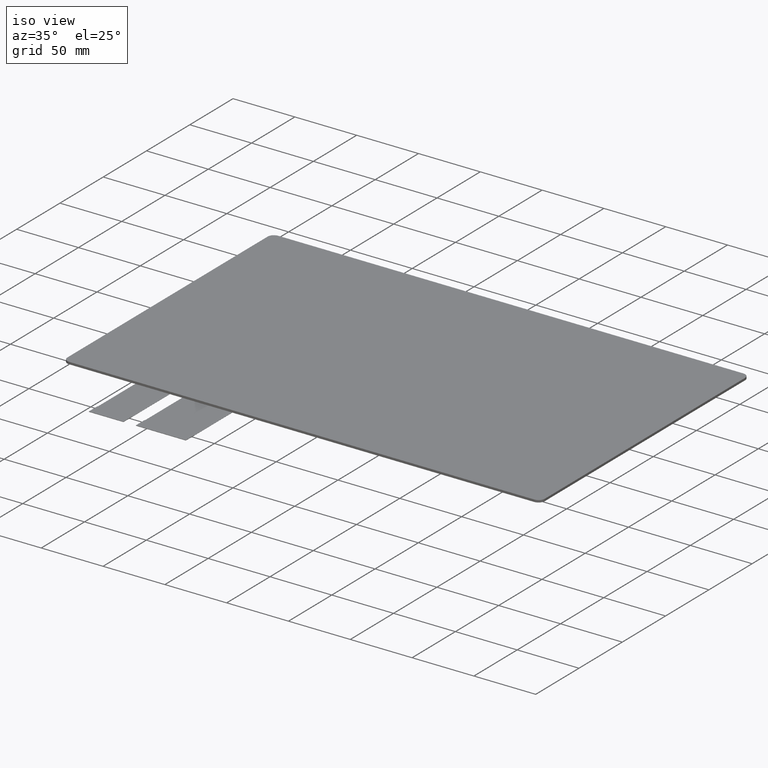
[diagram: clean part render]
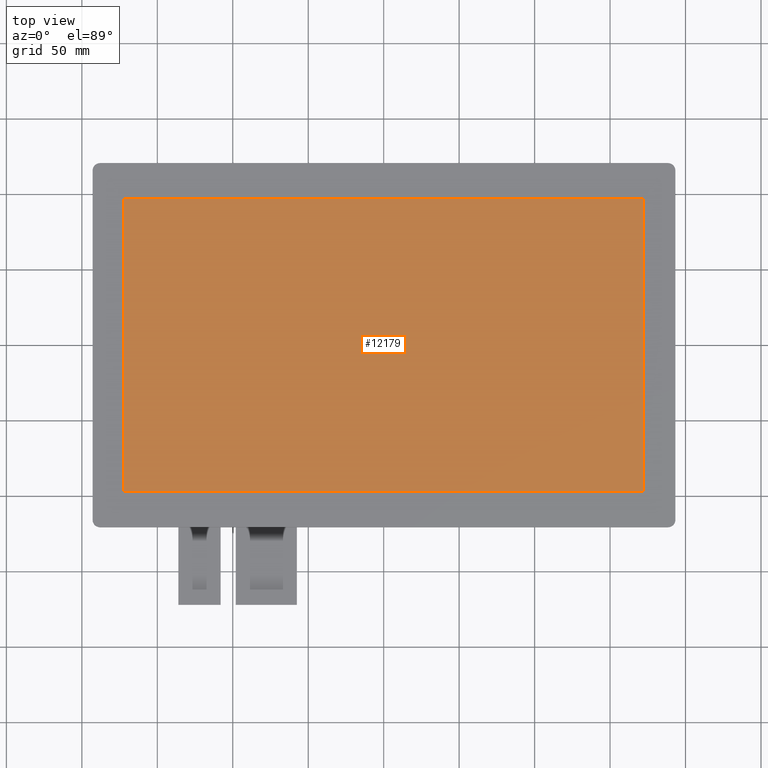
[diagram: tour spotlight — one face highlighted and labeled with its STEP entity id]
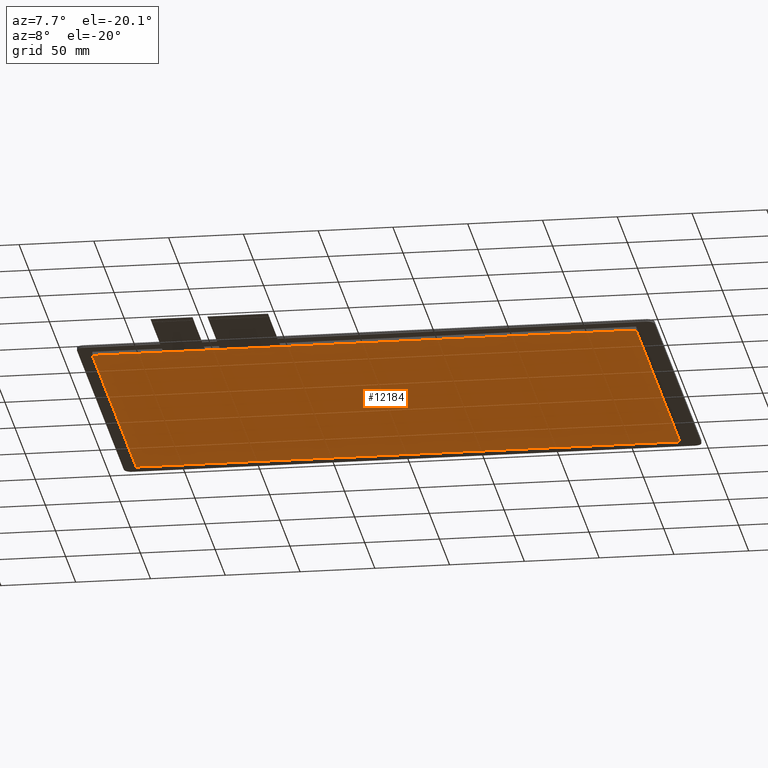
[diagram: tour spotlight — one face highlighted and labeled with its STEP entity id]
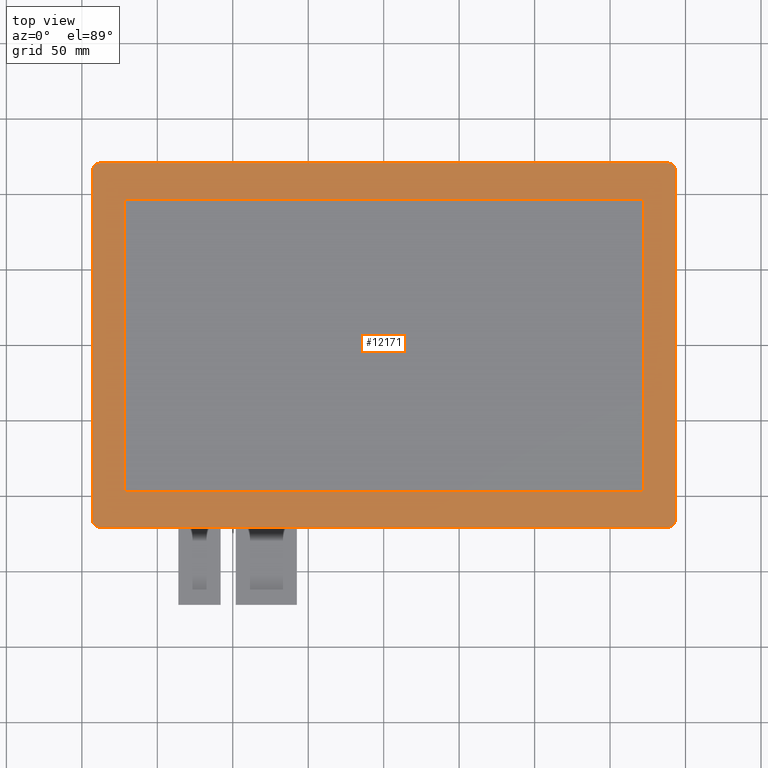
[diagram: tour spotlight — one face highlighted and labeled with its STEP entity id]
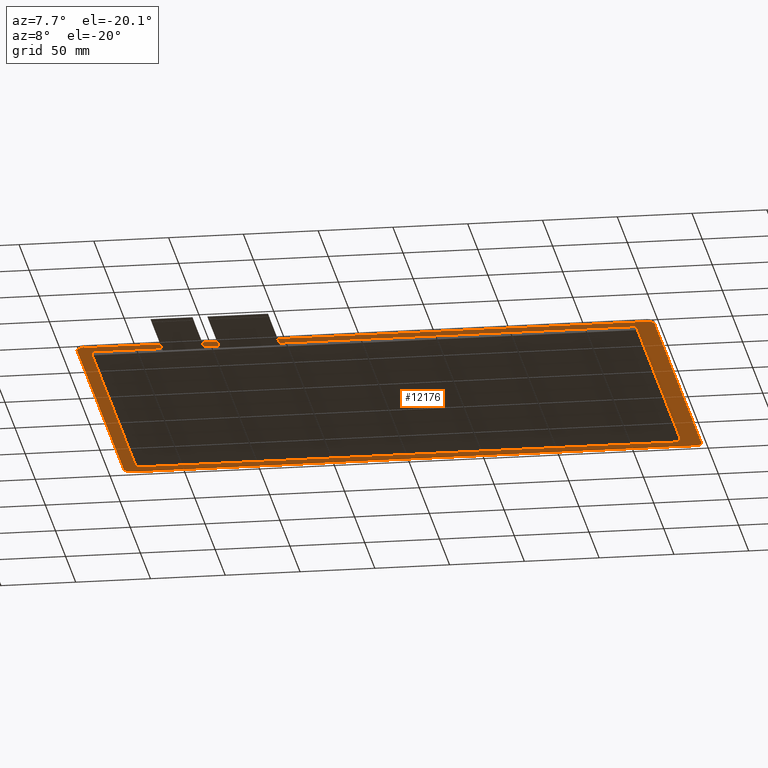
[diagram: tour spotlight — one face highlighted and labeled with its STEP entity id]
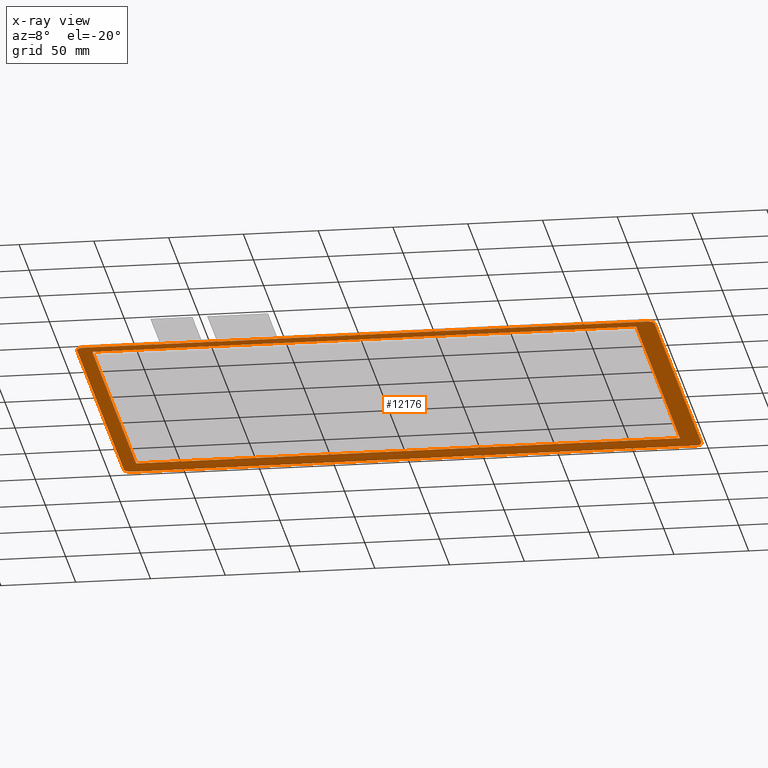
[diagram: x-ray of the same camera — body ghosted, this tour face saturated]
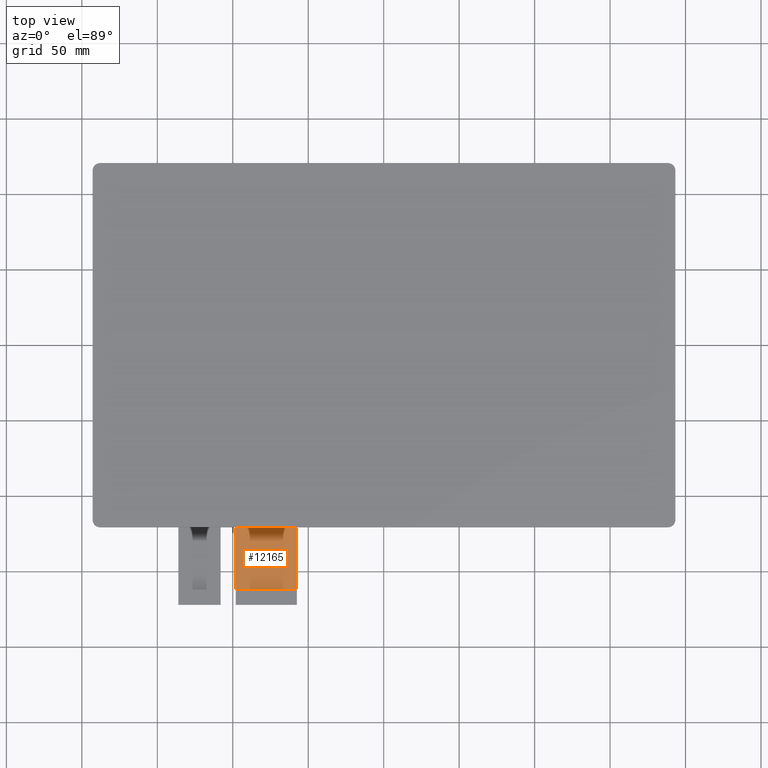
[diagram: tour spotlight — one face highlighted and labeled with its STEP entity id]
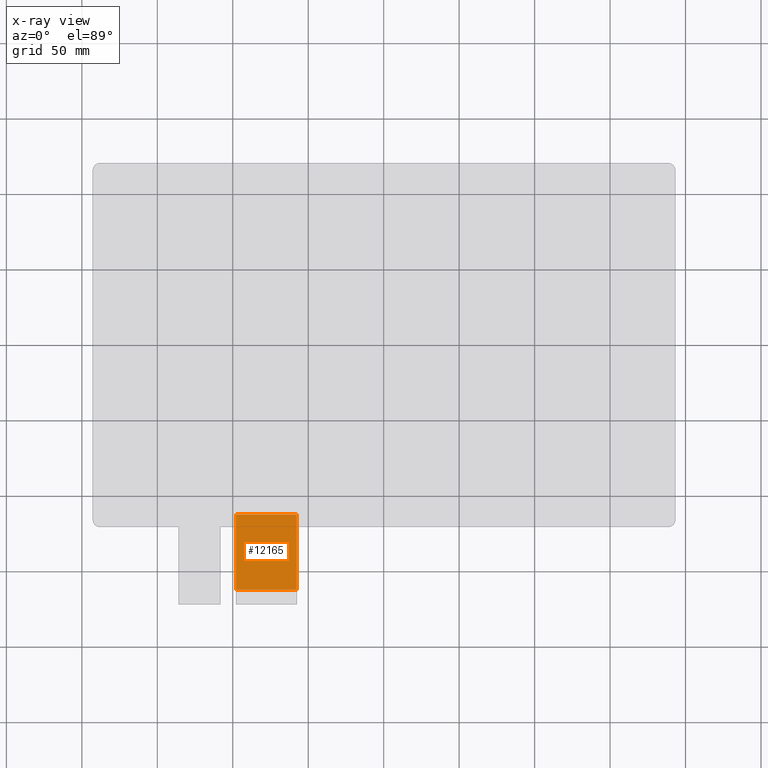
[diagram: x-ray of the same camera — body ghosted, this tour face saturated]
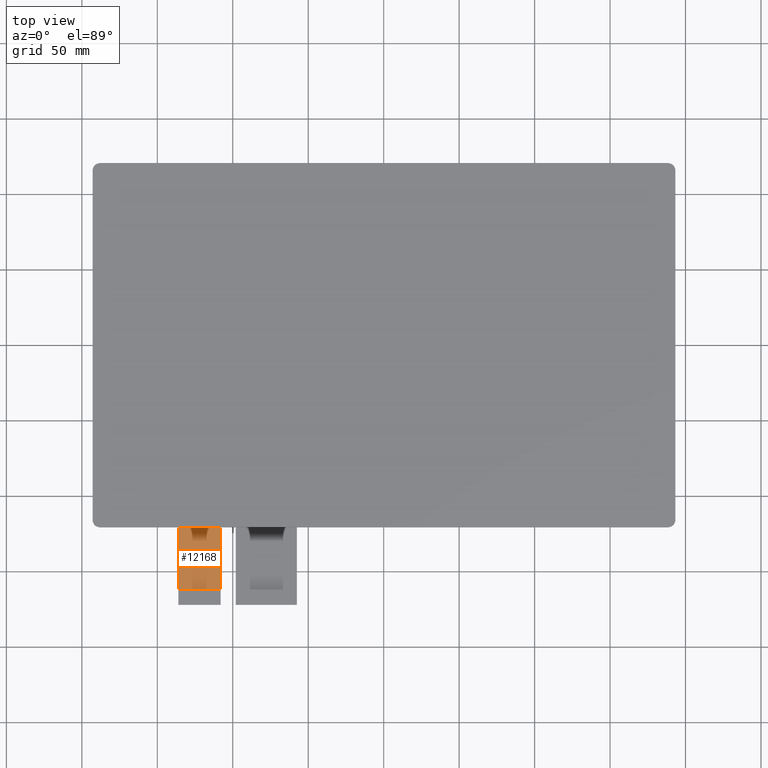
[diagram: tour spotlight — one face highlighted and labeled with its STEP entity id]
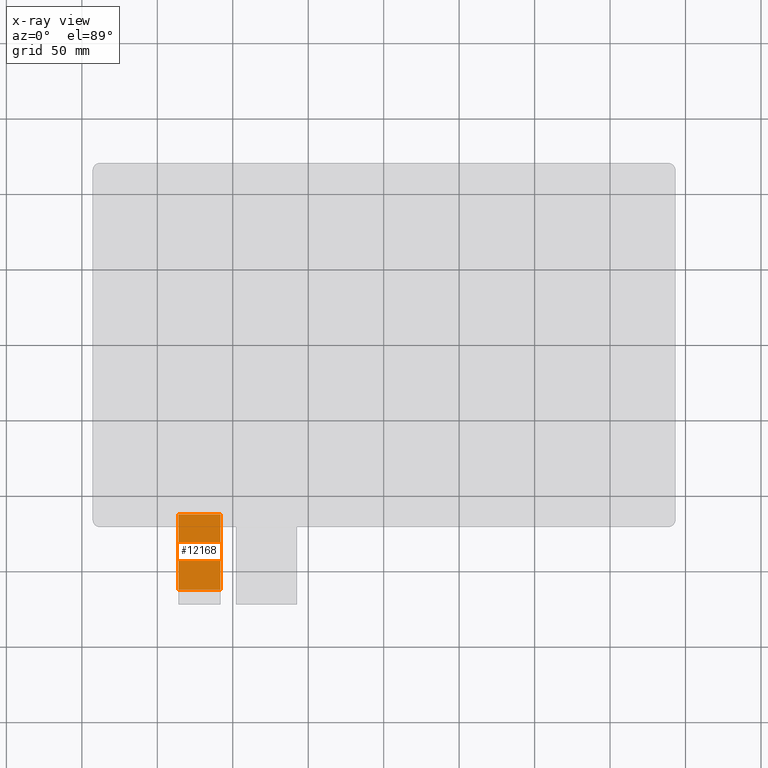
[diagram: x-ray of the same camera — body ghosted, this tour face saturated]
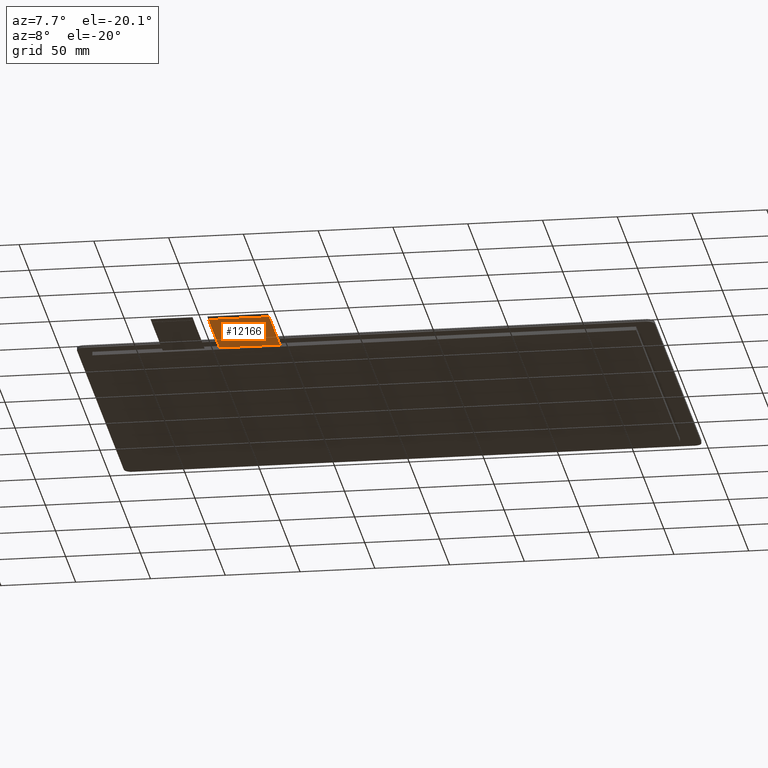
[diagram: tour spotlight — one face highlighted and labeled with its STEP entity id]
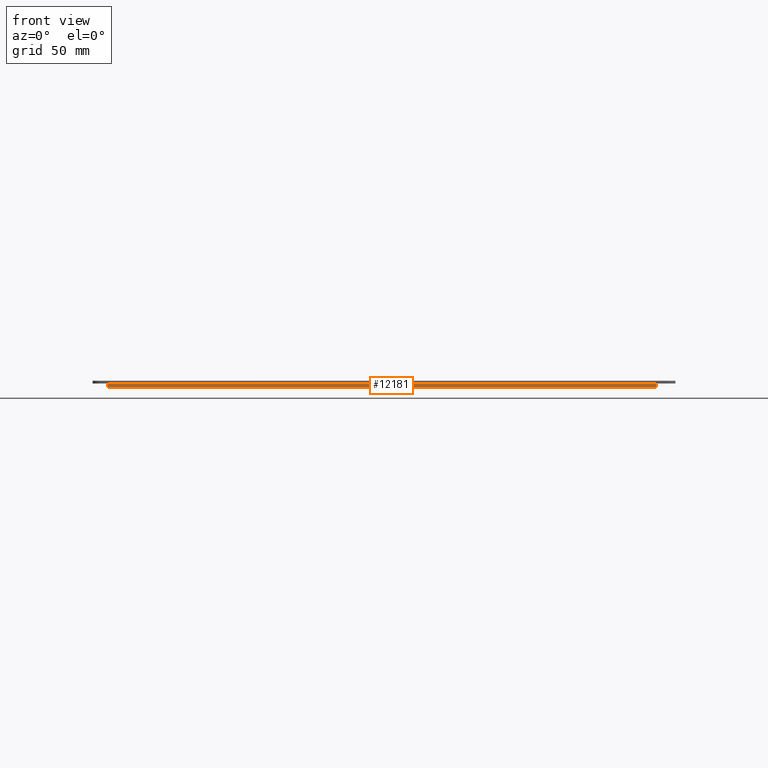
[diagram: tour spotlight — one face highlighted and labeled with its STEP entity id]
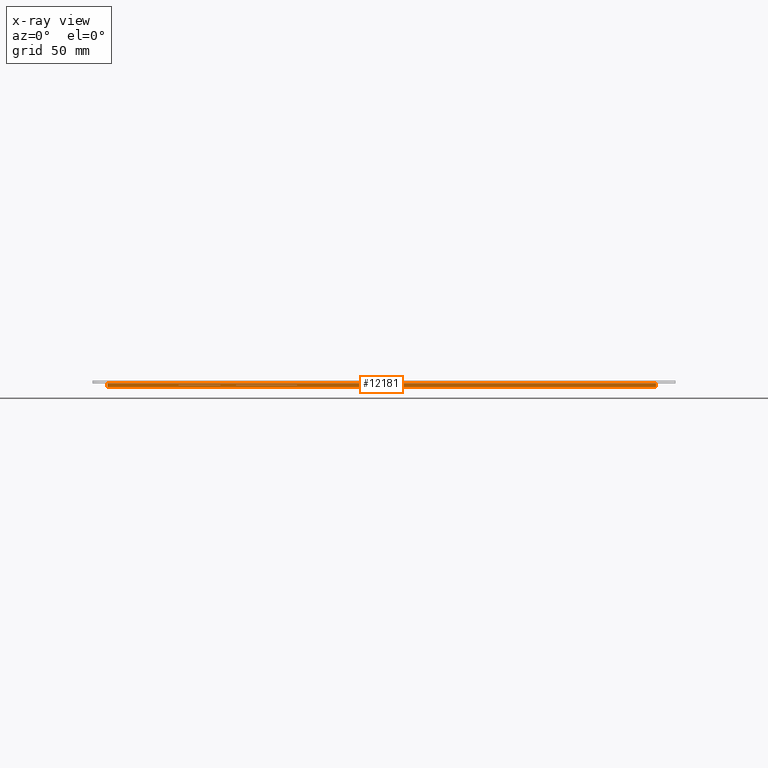
[diagram: x-ray of the same camera — body ghosted, this tour face saturated]
A machine part: a face-by-face anatomy tour. The part has 584 B-rep faces; the first image is the clean iso view, then the 8 largest visible faces are spotlighted one at a time (largest first), each with its STEP entity span.

Face 1 — top view, entity #12179. In plain terms, the highlighted planar face has unit normal (0, 0, 1).
Definition (entity closure, byte-faithful):
#615=PLANE('',#12801);
#1199=FACE_OUTER_BOUND('',#1785,.T.);
#1785=EDGE_LOOP('',(#11543,#11544,#11545,#11546));
#3479=LINE('',#19123,#5195);
#3480=LINE('',#19125,#5196);
#3481=LINE('',#19127,#5197);
#3482=LINE('',#19128,#5198);
#5195=VECTOR('',#15651,10.);
#5196=VECTOR('',#15652,10.);
#5197=VECTOR('',#15653,10.);
#5198=VECTOR('',#15654,10.);
#6378=VERTEX_POINT('',#19121);
#6379=VERTEX_POINT('',#19122);
#6380=VERTEX_POINT('',#19124);
#6381=VERTEX_POINT('',#19126);
#8096=EDGE_CURVE('',#6378,#6379,#3479,.T.);
#8097=EDGE_CURVE('',#6380,#6378,#3480,.T.);
#8098=EDGE_CURVE('',#6381,#6380,#3481,.T.);
#8099=EDGE_CURVE('',#6379,#6381,#3482,.T.);
#11543=ORIENTED_EDGE('',*,*,#8096,.T.);
#11544=ORIENTED_EDGE('',*,*,#8099,.T.);
#11545=ORIENTED_EDGE('',*,*,#8098,.T.);
#11546=ORIENTED_EDGE('',*,*,#8097,.T.);
#12179=ADVANCED_FACE('',(#1199),#615,.T.);
#12801=AXIS2_PLACEMENT_3D('',#19160,#15687,#15688);
#15651=DIRECTION('',(0.,1.,0.));
#15652=DIRECTION('',(1.,0.,0.));
#15653=DIRECTION('',(0.,-1.,0.));
#15654=DIRECTION('',(-1.,0.,0.));
#15687=DIRECTION('center_axis',(0.,0.,1.));
#15688=DIRECTION('ref_axis',(1.,0.,0.));
#19121=CARTESIAN_POINT('',(172.15,-96.8,1.8));
#19122=CARTESIAN_POINT('',(172.15,96.8,1.8));
#19123=CARTESIAN_POINT('',(172.15,-48.4,1.8));
#19124=CARTESIAN_POINT('',(-172.15,-96.8,1.8));
#19125=CARTESIAN_POINT('',(-85.975,-96.8,1.8));
#19126=CARTESIAN_POINT('',(-172.15,96.8,1.8));
#19127=CARTESIAN_POINT('',(-172.15,48.4,1.8));
#19128=CARTESIAN_POINT('',(86.175,96.8,1.8));
#19160=CARTESIAN_POINT('Origin',(0.199999999999996,3.5527136788005E-14,
1.8));

Face 2 — auxiliary view, entity #12184. In plain terms, the highlighted planar face has unit normal (0, 0, -1).
Definition (entity closure, byte-faithful):
#620=PLANE('',#12806);
#1204=FACE_OUTER_BOUND('',#1792,.T.);
#1792=EDGE_LOOP('',(#11571,#11572,#11573,#11574));
#3496=LINE('',#19165,#5212);
#3498=LINE('',#19169,#5214);
#3500=LINE('',#19173,#5216);
#3502=LINE('',#19176,#5218);
#5212=VECTOR('',#15692,10.);
#5214=VECTOR('',#15696,10.);
#5216=VECTOR('',#15700,10.);
#5218=VECTOR('',#15704,10.);
#6391=VERTEX_POINT('',#19162);
#6392=VERTEX_POINT('',#19164);
#6393=VERTEX_POINT('',#19168);
#6394=VERTEX_POINT('',#19172);
#8116=EDGE_CURVE('',#6392,#6391,#3496,.T.);
#8118=EDGE_CURVE('',#6393,#6392,#3498,.T.);
#8120=EDGE_CURVE('',#6394,#6393,#3500,.T.);
#8122=EDGE_CURVE('',#6391,#6394,#3502,.T.);
#11571=ORIENTED_EDGE('',*,*,#8122,.T.);
#11572=ORIENTED_EDGE('',*,*,#8120,.T.);
#11573=ORIENTED_EDGE('',*,*,#8118,.T.);
#11574=ORIENTED_EDGE('',*,*,#8116,.T.);
#12184=ADVANCED_FACE('',(#1204),#620,.T.);
#12806=AXIS2_PLACEMENT_3D('',#19177,#15705,#15706);
#15692=DIRECTION('',(-3.269869929867E-16,1.,0.));
#15696=DIRECTION('',(-1.,-1.46564095660087E-16,0.));
#15700=DIRECTION('',(0.,-1.,0.));
#15704=DIRECTION('',(1.,0.,0.));
#15705=DIRECTION('center_axis',(0.,0.,-1.));
#15706=DIRECTION('ref_axis',(-1.,0.,0.));
#19162=CARTESIAN_POINT('',(-183.15,105.2,-2.5));
#19164=CARTESIAN_POINT('',(-183.15,-112.1,-2.5));
#19165=CARTESIAN_POINT('',(-183.15,105.2,-2.5));
#19168=CARTESIAN_POINT('',(180.45,-112.1,-2.5));
#19169=CARTESIAN_POINT('',(-183.15,-112.1,-2.5));
#19172=CARTESIAN_POINT('',(180.45,105.2,-2.5));
#19173=CARTESIAN_POINT('',(180.45,-112.1,-2.5));
#19176=CARTESIAN_POINT('',(180.45,105.2,-2.5));
#19177=CARTESIAN_POINT('Origin',(-1.34999999999998,-3.44999999999995,-2.5));

Face 3 — top view, entity #12171. In plain terms, the highlighted planar face has unit normal (0, 0, 1).
Definition (entity closure, byte-faithful):
#31=FACE_BOUND('',#1776,.T.);
#610=PLANE('',#12787);
#1191=FACE_OUTER_BOUND('',#1775,.T.);
#1775=EDGE_LOOP('',(#11495,#11496,#11497,#11498,#11499,#11500,#11501,#11502));
#1776=EDGE_LOOP('',(#11503,#11504,#11505,#11506));
#3473=LINE('',#19105,#5189);
#3476=LINE('',#19111,#5192);
#3477=LINE('',#19115,#5193);
#3478=LINE('',#19119,#5194);
#3479=LINE('',#19123,#5195);
#3480=LINE('',#19125,#5196);
#3481=LINE('',#19127,#5197);
#3482=LINE('',#19128,#5198);
#5189=VECTOR('',#15637,10.);
#5192=VECTOR('',#15642,10.);
#5193=VECTOR('',#15645,10.);
#5194=VECTOR('',#15648,10.);
#5195=VECTOR('',#15651,10.);
#5196=VECTOR('',#15652,10.);
#5197=VECTOR('',#15653,10.);
#5198=VECTOR('',#15654,10.);
#5239=CIRCLE('',#12784,5.);
#5241=CIRCLE('',#12788,5.);
#5242=CIRCLE('',#12789,5.);
#5243=CIRCLE('',#12790,5.);
#6367=VERTEX_POINT('',#19095);
#6368=VERTEX_POINT('',#19096);
#6371=VERTEX_POINT('',#19104);
#6373=VERTEX_POINT('',#19110);
#6374=VERTEX_POINT('',#19112);
#6375=VERTEX_POINT('',#19114);
#6376=VERTEX_POINT('',#19116);
#6377=VERTEX_POINT('',#19118);
#6378=VERTEX_POINT('',#19121);
#6379=VERTEX_POINT('',#19122);
#6380=VERTEX_POINT('',#19124);
#6381=VERTEX_POINT('',#19126);
#8083=EDGE_CURVE('',#6367,#6368,#5239,.T.);
#8087=EDGE_CURVE('',#6371,#6368,#3473,.T.);
#8090=EDGE_CURVE('',#6367,#6373,#3476,.T.);
#8091=EDGE_CURVE('',#6374,#6373,#5241,.T.);
#8092=EDGE_CURVE('',#6374,#6375,#3477,.T.);
#8093=EDGE_CURVE('',#6376,#6375,#5242,.T.);
#8094=EDGE_CURVE('',#6376,#6377,#3478,.T.);
#8095=EDGE_CURVE('',#6371,#6377,#5243,.T.);
#8096=EDGE_CURVE('',#6378,#6379,#3479,.T.);
#8097=EDGE_CURVE('',#6380,#6378,#3480,.T.);
#8098=EDGE_CURVE('',#6381,#6380,#3481,.T.);
#8099=EDGE_CURVE('',#6379,#6381,#3482,.T.);
#11495=ORIENTED_EDGE('',*,*,#8083,.F.);
#11496=ORIENTED_EDGE('',*,*,#8090,.T.);
#11497=ORIENTED_EDGE('',*,*,#8091,.F.);
#11498=ORIENTED_EDGE('',*,*,#8092,.T.);
#11499=ORIENTED_EDGE('',*,*,#8093,.F.);
#11500=ORIENTED_EDGE('',*,*,#8094,.T.);
#11501=ORIENTED_EDGE('',*,*,#8095,.F.);
#11502=ORIENTED_EDGE('',*,*,#8087,.T.);
#11503=ORIENTED_EDGE('',*,*,#8096,.F.);
#11504=ORIENTED_EDGE('',*,*,#8097,.F.);
#11505=ORIENTED_EDGE('',*,*,#8098,.F.);
#11506=ORIENTED_EDGE('',*,*,#8099,.F.);
#12171=ADVANCED_FACE('',(#1191,#31),#610,.T.);
#12784=AXIS2_PLACEMENT_3D('',#19097,#15629,#15630);
#12787=AXIS2_PLACEMENT_3D('',#19109,#15640,#15641);
#12788=AXIS2_PLACEMENT_3D('',#19113,#15643,#15644);
#12789=AXIS2_PLACEMENT_3D('',#19117,#15646,#15647);
#12790=AXIS2_PLACEMENT_3D('',#19120,#15649,#15650);
#15629=DIRECTION('center_axis',(0.,0.,-1.));
#15630=DIRECTION('ref_axis',(0.707106781186547,0.707106781186547,0.));
#15637=DIRECTION('',(0.,1.,0.));
#15640=DIRECTION('center_axis',(0.,0.,1.));
#15641=DIRECTION('ref_axis',(1.,0.,0.));
#15642=DIRECTION('',(-1.,0.,0.));
#15643=DIRECTION('center_axis',(0.,0.,-1.));
#15644=DIRECTION('ref_axis',(-0.707106781186547,0.707106781186547,0.));
#15645=DIRECTION('',(2.94342475459859E-16,-1.,0.));
#15646=DIRECTION('center_axis',(0.,0.,-1.));
#15647=DIRECTION('ref_axis',(-0.707106781186547,-0.707106781186547,0.));
#15648=DIRECTION('',(1.,1.37987325691371E-16,0.));
#15649=DIRECTION('center_axis',(0.,0.,-1.));
#15650=DIRECTION('ref_axis',(0.70710678118655,-0.707106781186545,0.));
#15651=DIRECTION('',(0.,1.,0.));
#15652=DIRECTION('',(1.,0.,0.));
#15653=DIRECTION('',(0.,-1.,0.));
#15654=DIRECTION('',(-1.,0.,0.));
#19095=CARTESIAN_POINT('',(188.3,120.7,1.8));
#19096=CARTESIAN_POINT('',(193.3,115.7,1.8));
#19097=CARTESIAN_POINT('Origin',(188.3,115.7,1.8));
#19104=CARTESIAN_POINT('',(193.3,-115.7,1.8));
#19105=CARTESIAN_POINT('',(193.3,-120.7,1.8));
#19109=CARTESIAN_POINT('Origin',(0.199999999999996,3.5527136788005E-14,
1.8));
#19110=CARTESIAN_POINT('',(-187.9,120.7,1.8));
#19111=CARTESIAN_POINT('',(193.3,120.7,1.8));
#19112=CARTESIAN_POINT('',(-192.9,115.7,1.8));
#19113=CARTESIAN_POINT('Origin',(-187.9,115.7,1.8));
#19114=CARTESIAN_POINT('',(-192.9,-115.7,1.8));
#19115=CARTESIAN_POINT('',(-192.9,120.7,1.8));
#19116=CARTESIAN_POINT('',(-187.9,-120.7,1.8));
#19117=CARTESIAN_POINT('Origin',(-187.9,-115.7,1.8));
#19118=CARTESIAN_POINT('',(188.3,-120.7,1.8));
#19119=CARTESIAN_POINT('',(-192.9,-120.7,1.8));
#19120=CARTESIAN_POINT('Origin',(188.3,-115.7,1.8));
#19121=CARTESIAN_POINT('',(172.15,-96.8,1.8));
#19122=CARTESIAN_POINT('',(172.15,96.8,1.8));
#19123=CARTESIAN_POINT('',(172.15,-48.4,1.8));
#19124=CARTESIAN_POINT('',(-172.15,-96.8,1.8));
#19125=CARTESIAN_POINT('',(-85.975,-96.8,1.8));
#19126=CARTESIAN_POINT('',(-172.15,96.8,1.8));
#19127=CARTESIAN_POINT('',(-172.15,48.4,1.8));
#19128=CARTESIAN_POINT('',(86.175,96.8,1.8));

Face 4 — auxiliary view, entity #12176. An x-ray twin of the same camera follows (body ghosted, this face saturated) — the face is partly hidden behind the body. In plain terms, the highlighted planar face has unit normal (0, 0, 1).
Definition (entity closure, byte-faithful):
#32=FACE_BOUND('',#1782,.T.);
#612=PLANE('',#12798);
#1196=FACE_OUTER_BOUND('',#1781,.T.);
#1781=EDGE_LOOP('',(#11523,#11524,#11525,#11526,#11527,#11528,#11529,#11530));
#1782=EDGE_LOOP('',(#11531,#11532,#11533,#11534));
#3475=LINE('',#19108,#5191);
#3485=LINE('',#19137,#5201);
#3489=LINE('',#19148,#5205);
#3490=LINE('',#19149,#5206);
#3491=LINE('',#19152,#5207);
#3492=LINE('',#19154,#5208);
#3493=LINE('',#19156,#5209);
#3494=LINE('',#19157,#5210);
#5191=VECTOR('',#15639,10.);
#5201=VECTOR('',#15663,10.);
#5205=VECTOR('',#15677,10.);
#5206=VECTOR('',#15678,10.);
#5207=VECTOR('',#15679,10.);
#5208=VECTOR('',#15680,10.);
#5209=VECTOR('',#15681,10.);
#5210=VECTOR('',#15682,10.);
#5240=CIRCLE('',#12785,5.);
#5244=CIRCLE('',#12792,5.);
#5245=CIRCLE('',#12795,5.);
#5246=CIRCLE('',#12797,5.);
#6369=VERTEX_POINT('',#19098);
#6370=VERTEX_POINT('',#19100);
#6372=VERTEX_POINT('',#19106);
#6382=VERTEX_POINT('',#19130);
#6383=VERTEX_POINT('',#19132);
#6384=VERTEX_POINT('',#19136);
#6385=VERTEX_POINT('',#19140);
#6386=VERTEX_POINT('',#19144);
#6387=VERTEX_POINT('',#19150);
#6388=VERTEX_POINT('',#19151);
#6389=VERTEX_POINT('',#19153);
#6390=VERTEX_POINT('',#19155);
#8085=EDGE_CURVE('',#6369,#6370,#5240,.T.);
#8089=EDGE_CURVE('',#6372,#6369,#3475,.T.);
#8101=EDGE_CURVE('',#6382,#6383,#5244,.T.);
#8103=EDGE_CURVE('',#6383,#6384,#3485,.T.);
#8105=EDGE_CURVE('',#6384,#6385,#5245,.T.);
#8108=EDGE_CURVE('',#6386,#6372,#5246,.T.);
#8109=EDGE_CURVE('',#6385,#6386,#3489,.T.);
#8110=EDGE_CURVE('',#6370,#6382,#3490,.T.);
#8111=EDGE_CURVE('',#6387,#6388,#3491,.T.);
#8112=EDGE_CURVE('',#6388,#6389,#3492,.T.);
#8113=EDGE_CURVE('',#6389,#6390,#3493,.T.);
#8114=EDGE_CURVE('',#6390,#6387,#3494,.T.);
#11523=ORIENTED_EDGE('',*,*,#8085,.F.);
#11524=ORIENTED_EDGE('',*,*,#8089,.F.);
#11525=ORIENTED_EDGE('',*,*,#8108,.F.);
#11526=ORIENTED_EDGE('',*,*,#8109,.F.);
#11527=ORIENTED_EDGE('',*,*,#8105,.F.);
#11528=ORIENTED_EDGE('',*,*,#8103,.F.);
#11529=ORIENTED_EDGE('',*,*,#8101,.F.);
#11530=ORIENTED_EDGE('',*,*,#8110,.F.);
#11531=ORIENTED_EDGE('',*,*,#8111,.T.);
#11532=ORIENTED_EDGE('',*,*,#8112,.T.);
#11533=ORIENTED_EDGE('',*,*,#8113,.T.);
#11534=ORIENTED_EDGE('',*,*,#8114,.T.);
#12176=ADVANCED_FACE('',(#1196,#32),#612,.F.);
#12785=AXIS2_PLACEMENT_3D('',#19101,#15632,#15633);
#12792=AXIS2_PLACEMENT_3D('',#19133,#15658,#15659);
#12795=AXIS2_PLACEMENT_3D('',#19141,#15667,#15668);
#12797=AXIS2_PLACEMENT_3D('',#19146,#15673,#15674);
#12798=AXIS2_PLACEMENT_3D('',#19147,#15675,#15676);
#15632=DIRECTION('center_axis',(0.,0.,1.));
#15633=DIRECTION('ref_axis',(0.707106781186547,0.707106781186547,0.));
#15639=DIRECTION('',(0.,1.,0.));
#15658=DIRECTION('center_axis',(0.,0.,1.));
#15659=DIRECTION('ref_axis',(-0.707106781186547,0.707106781186547,0.));
#15663=DIRECTION('',(2.94342475459859E-16,-1.,0.));
#15667=DIRECTION('center_axis',(0.,0.,1.));
#15668=DIRECTION('ref_axis',(-0.707106781186547,-0.707106781186547,0.));
#15673=DIRECTION('center_axis',(0.,0.,1.));
#15674=DIRECTION('ref_axis',(0.70710678118655,-0.707106781186545,0.));
#15675=DIRECTION('center_axis',(0.,0.,1.));
#15676=DIRECTION('ref_axis',(1.,0.,0.));
#15677=DIRECTION('',(1.,1.37987325691371E-16,0.));
#15678=DIRECTION('',(-1.,0.,0.));
#15679=DIRECTION('',(3.269869929867E-16,-1.,0.));
#15680=DIRECTION('',(1.,1.46564095660087E-16,0.));
#15681=DIRECTION('',(0.,1.,0.));
#15682=DIRECTION('',(-1.,0.,0.));
#19098=CARTESIAN_POINT('',(193.3,115.7,0.));
#19100=CARTESIAN_POINT('',(188.3,120.7,0.));
#19101=CARTESIAN_POINT('Origin',(188.3,115.7,0.));
#19106=CARTESIAN_POINT('',(193.3,-115.7,0.));
#19108=CARTESIAN_POINT('',(193.3,-120.7,0.));
#19130=CARTESIAN_POINT('',(-187.9,120.7,0.));
#19132=CARTESIAN_POINT('',(-192.9,115.7,0.));
#19133=CARTESIAN_POINT('Origin',(-187.9,115.7,0.));
#19136=CARTESIAN_POINT('',(-192.9,-115.7,0.));
#19137=CARTESIAN_POINT('',(-192.9,120.7,0.));
#19140=CARTESIAN_POINT('',(-187.9,-120.7,0.));
#19141=CARTESIAN_POINT('Origin',(-187.9,-115.7,0.));
#19144=CARTESIAN_POINT('',(188.3,-120.7,0.));
#19146=CARTESIAN_POINT('Origin',(188.3,-115.7,0.));
#19147=CARTESIAN_POINT('Origin',(0.199999999999996,4.44089209850063E-14,
0.));
#19148=CARTESIAN_POINT('',(-192.9,-120.7,0.));
#19149=CARTESIAN_POINT('',(193.3,120.7,0.));
#19150=CARTESIAN_POINT('',(-183.15,105.2,0.));
#19151=CARTESIAN_POINT('',(-183.15,-112.1,0.));
#19152=CARTESIAN_POINT('',(-183.15,105.2,0.));
#19153=CARTESIAN_POINT('',(180.45,-112.1,0.));
#19154=CARTESIAN_POINT('',(-183.15,-112.1,0.));
#19155=CARTESIAN_POINT('',(180.45,105.2,0.));
#19156=CARTESIAN_POINT('',(180.45,-112.1,0.));
#19157=CARTESIAN_POINT('',(180.45,105.2,0.));

Face 5 — top view, entity #12165. An x-ray twin of the same camera follows (body ghosted, this face saturated) — the face is partly hidden behind the body. In plain terms, the highlighted planar face has unit normal (0, 0, 1).
Definition (entity closure, byte-faithful):
#605=PLANE('',#12779);
#1185=FACE_OUTER_BOUND('',#1769,.T.);
#1769=EDGE_LOOP('',(#11467,#11468,#11469,#11470));
#3452=LINE('',#19058,#5168);
#3455=LINE('',#19064,#5171);
#3465=LINE('',#19083,#5181);
#3466=LINE('',#19085,#5182);
#5168=VECTOR('',#15590,10.);
#5171=VECTOR('',#15595,10.);
#5181=VECTOR('',#15613,10.);
#5182=VECTOR('',#15616,10.);
#6357=VERTEX_POINT('',#19055);
#6358=VERTEX_POINT('',#19057);
#6360=VERTEX_POINT('',#19063);
#6365=VERTEX_POINT('',#19081);
#8064=EDGE_CURVE('',#6358,#6357,#3452,.T.);
#8067=EDGE_CURVE('',#6357,#6360,#3455,.T.);
#8077=EDGE_CURVE('',#6360,#6365,#3465,.T.);
#8078=EDGE_CURVE('',#6358,#6365,#3466,.T.);
#11467=ORIENTED_EDGE('',*,*,#8067,.T.);
#11468=ORIENTED_EDGE('',*,*,#8077,.T.);
#11469=ORIENTED_EDGE('',*,*,#8078,.F.);
#11470=ORIENTED_EDGE('',*,*,#8064,.T.);
#12165=ADVANCED_FACE('',(#1185),#605,.T.);
#12779=AXIS2_PLACEMENT_3D('',#19084,#15614,#15615);
#15590=DIRECTION('',(5.9211894646675E-16,-1.,0.));
#15595=DIRECTION('',(1.,0.,0.));
#15613=DIRECTION('',(4.44089209850063E-16,1.,0.));
#15614=DIRECTION('center_axis',(0.,0.,1.));
#15615=DIRECTION('ref_axis',(1.,0.,0.));
#15616=DIRECTION('',(1.,1.46564095660087E-16,0.));
#19055=CARTESIAN_POINT('',(-98.07,-162.1,-1.25));
#19057=CARTESIAN_POINT('',(-98.07,-112.1,-1.25));
#19058=CARTESIAN_POINT('',(-98.07,-112.1,-1.25));
#19063=CARTESIAN_POINT('',(-57.57,-162.1,-1.25));
#19064=CARTESIAN_POINT('',(-67.695,-162.1,-1.25));
#19081=CARTESIAN_POINT('',(-57.57,-112.1,-1.25));
#19083=CARTESIAN_POINT('',(-57.57,-172.1,-1.25));
#19084=CARTESIAN_POINT('Origin',(-77.82,-142.1,-1.25));
#19085=CARTESIAN_POINT('',(51.3150000000001,-112.1,-1.25));

Face 6 — top view, entity #12168. An x-ray twin of the same camera follows (body ghosted, this face saturated) — the face is partly hidden behind the body. In plain terms, the highlighted planar face has unit normal (0, 0, 1).
Definition (entity closure, byte-faithful):
#608=PLANE('',#12782);
#1188=FACE_OUTER_BOUND('',#1772,.T.);
#1772=EDGE_LOOP('',(#11483,#11484,#11485,#11486));
#3448=LINE('',#19050,#5164);
#3459=LINE('',#19072,#5175);
#3469=LINE('',#19091,#5185);
#3470=LINE('',#19093,#5186);
#5164=VECTOR('',#15584,10.);
#5175=VECTOR('',#15603,10.);
#5185=VECTOR('',#15623,10.);
#5186=VECTOR('',#15626,10.);
#6354=VERTEX_POINT('',#19047);
#6355=VERTEX_POINT('',#19049);
#6362=VERTEX_POINT('',#19071);
#6366=VERTEX_POINT('',#19089);
#8060=EDGE_CURVE('',#6355,#6354,#3448,.T.);
#8071=EDGE_CURVE('',#6354,#6362,#3459,.T.);
#8081=EDGE_CURVE('',#6362,#6366,#3469,.T.);
#8082=EDGE_CURVE('',#6355,#6366,#3470,.T.);
#11483=ORIENTED_EDGE('',*,*,#8071,.T.);
#11484=ORIENTED_EDGE('',*,*,#8081,.T.);
#11485=ORIENTED_EDGE('',*,*,#8082,.F.);
#11486=ORIENTED_EDGE('',*,*,#8060,.T.);
#12168=ADVANCED_FACE('',(#1188),#608,.T.);
#12782=AXIS2_PLACEMENT_3D('',#19092,#15624,#15625);
#15584=DIRECTION('',(1.1842378929335E-15,-1.,0.));
#15603=DIRECTION('',(1.,0.,0.));
#15623=DIRECTION('',(-2.96059473233375E-16,1.,0.));
#15624=DIRECTION('center_axis',(0.,0.,1.));
#15625=DIRECTION('ref_axis',(1.,0.,0.));
#15626=DIRECTION('',(1.,1.46564095660087E-16,0.));
#19047=CARTESIAN_POINT('',(-136.07,-162.1,-1.25));
#19049=CARTESIAN_POINT('',(-136.07,-112.1,-1.25));
#19050=CARTESIAN_POINT('',(-136.07,-112.1,-1.25));
#19071=CARTESIAN_POINT('',(-108.07,-162.1,-1.25));
#19072=CARTESIAN_POINT('',(-115.07,-162.1,-1.25));
#19089=CARTESIAN_POINT('',(-108.07,-112.1,-1.25));
#19091=CARTESIAN_POINT('',(-108.07,-172.1,-1.25));
#19092=CARTESIAN_POINT('Origin',(-122.07,-142.1,-1.25));
#19093=CARTESIAN_POINT('',(29.1900000000001,-112.1,-1.25));

Face 7 — auxiliary view, entity #12166. In plain terms, the highlighted planar face has unit normal (0, 0, -1).
Definition (entity closure, byte-faithful):
#606=PLANE('',#12780);
#1186=FACE_OUTER_BOUND('',#1770,.T.);
#1770=EDGE_LOOP('',(#11471,#11472,#11473,#11474));
#3441=LINE('',#19036,#5157);
#3454=LINE('',#19061,#5170);
#3463=LINE('',#19080,#5179);
#3467=LINE('',#19087,#5183);
#5157=VECTOR('',#15573,10.);
#5170=VECTOR('',#15592,10.);
#5179=VECTOR('',#15611,10.);
#5183=VECTOR('',#15619,10.);
#6349=VERTEX_POINT('',#19033);
#6350=VERTEX_POINT('',#19035);
#6359=VERTEX_POINT('',#19059);
#6364=VERTEX_POINT('',#19079);
#8053=EDGE_CURVE('',#6350,#6349,#3441,.T.);
#8066=EDGE_CURVE('',#6349,#6359,#3454,.T.);
#8075=EDGE_CURVE('',#6364,#6350,#3463,.T.);
#8079=EDGE_CURVE('',#6364,#6359,#3467,.T.);
#11471=ORIENTED_EDGE('',*,*,#8053,.T.);
#11472=ORIENTED_EDGE('',*,*,#8066,.T.);
#11473=ORIENTED_EDGE('',*,*,#8079,.F.);
#11474=ORIENTED_EDGE('',*,*,#8075,.T.);
#12166=ADVANCED_FACE('',(#1186),#606,.T.);
#12780=AXIS2_PLACEMENT_3D('',#19086,#15617,#15618);
#15573=DIRECTION('',(-1.,0.,0.));
#15592=DIRECTION('',(-5.9211894646675E-16,1.,0.));
#15611=DIRECTION('',(-4.44089209850063E-16,-1.,0.));
#15617=DIRECTION('center_axis',(0.,0.,-1.));
#15618=DIRECTION('ref_axis',(-1.,0.,0.));
#15619=DIRECTION('',(-1.,-1.46564095660087E-16,0.));
#19033=CARTESIAN_POINT('',(-98.07,-167.1,-1.35));
#19035=CARTESIAN_POINT('',(-57.57,-167.1,-1.35));
#19036=CARTESIAN_POINT('',(-67.695,-167.1,-1.35));
#19059=CARTESIAN_POINT('',(-98.07,-112.1,-1.35));
#19061=CARTESIAN_POINT('',(-98.07,-112.1,-1.35));
#19079=CARTESIAN_POINT('',(-57.57,-112.1,-1.35));
#19080=CARTESIAN_POINT('',(-57.57,-172.1,-1.35));
#19086=CARTESIAN_POINT('Origin',(-77.82,-142.1,-1.35));
#19087=CARTESIAN_POINT('',(51.3150000000001,-112.1,-1.35));

Face 8 — front view, entity #12181. An x-ray twin of the same camera follows (body ghosted, this face saturated) — the face is partly hidden behind the body. In plain terms, the highlighted planar face has unit normal (0, -1, 0).
Definition (entity closure, byte-faithful):
#33=FACE_BOUND('',#1788,.T.);
#34=FACE_BOUND('',#1789,.T.);
#617=PLANE('',#12803);
#1201=FACE_OUTER_BOUND('',#1787,.T.);
#1787=EDGE_LOOP('',(#11551,#11552,#11553,#11554));
#1788=EDGE_LOOP('',(#11555,#11556,#11557,#11558));
#1789=EDGE_LOOP('',(#11559,#11560,#11561,#11562));
#3444=LINE('',#19042,#5160);
#3449=LINE('',#19051,#5165);
#3453=LINE('',#19060,#5169);
#3464=LINE('',#19082,#5180);
#3466=LINE('',#19085,#5182);
#3467=LINE('',#19087,#5183);
#3468=LINE('',#19090,#5184);
#3470=LINE('',#19093,#5186);
#3492=LINE('',#19154,#5208);
#3497=LINE('',#19166,#5213);
#3498=LINE('',#19169,#5214);
#3499=LINE('',#19170,#5215);
#5160=VECTOR('',#15578,10.);
#5165=VECTOR('',#15585,10.);
#5169=VECTOR('',#15591,10.);
#5180=VECTOR('',#15612,10.);
#5182=VECTOR('',#15616,10.);
#5183=VECTOR('',#15619,10.);
#5184=VECTOR('',#15622,10.);
#5186=VECTOR('',#15626,10.);
#5208=VECTOR('',#15680,10.);
#5213=VECTOR('',#15693,10.);
#5214=VECTOR('',#15696,10.);
#5215=VECTOR('',#15697,10.);
#6351=VERTEX_POINT('',#19039);
#6352=VERTEX_POINT('',#19041);
#6355=VERTEX_POINT('',#19049);
#6358=VERTEX_POINT('',#19057);
#6359=VERTEX_POINT('',#19059);
#6364=VERTEX_POINT('',#19079);
#6365=VERTEX_POINT('',#19081);
#6366=VERTEX_POINT('',#19089);
#6388=VERTEX_POINT('',#19151);
#6389=VERTEX_POINT('',#19153);
#6392=VERTEX_POINT('',#19164);
#6393=VERTEX_POINT('',#19168);
#8056=EDGE_CURVE('',#6352,#6351,#3444,.T.);
#8061=EDGE_CURVE('',#6351,#6355,#3449,.T.);
#8065=EDGE_CURVE('',#6359,#6358,#3453,.T.);
#8076=EDGE_CURVE('',#6365,#6364,#3464,.T.);
#8078=EDGE_CURVE('',#6358,#6365,#3466,.T.);
#8079=EDGE_CURVE('',#6364,#6359,#3467,.T.);
#8080=EDGE_CURVE('',#6366,#6352,#3468,.T.);
#8082=EDGE_CURVE('',#6355,#6366,#3470,.T.);
#8112=EDGE_CURVE('',#6388,#6389,#3492,.T.);
#8117=EDGE_CURVE('',#6388,#6392,#3497,.T.);
#8118=EDGE_CURVE('',#6393,#6392,#3498,.T.);
#8119=EDGE_CURVE('',#6389,#6393,#3499,.T.);
#11551=ORIENTED_EDGE('',*,*,#8112,.F.);
#11552=ORIENTED_EDGE('',*,*,#8117,.T.);
#11553=ORIENTED_EDGE('',*,*,#8118,.F.);
#11554=ORIENTED_EDGE('',*,*,#8119,.F.);
#11555=ORIENTED_EDGE('',*,*,#8076,.T.);
#11556=ORIENTED_EDGE('',*,*,#8079,.T.);
#11557=ORIENTED_EDGE('',*,*,#8065,.T.);
#11558=ORIENTED_EDGE('',*,*,#8078,.T.);
#11559=ORIENTED_EDGE('',*,*,#8080,.T.);
#11560=ORIENTED_EDGE('',*,*,#8056,.T.);
#11561=ORIENTED_EDGE('',*,*,#8061,.T.);
#11562=ORIENTED_EDGE('',*,*,#8082,.T.);
#12181=ADVANCED_FACE('',(#1201,#33,#34),#617,.T.);
#12803=AXIS2_PLACEMENT_3D('',#19167,#15694,#15695);
#15578=DIRECTION('',(-1.,-1.46564095660087E-16,0.));
#15585=DIRECTION('',(0.,0.,1.));
#15591=DIRECTION('',(0.,0.,1.));
#15612=DIRECTION('',(0.,0.,-1.));
#15616=DIRECTION('',(1.,1.46564095660087E-16,0.));
#15619=DIRECTION('',(-1.,-1.46564095660087E-16,0.));
#15622=DIRECTION('',(0.,0.,-1.));
#15626=DIRECTION('',(1.,1.46564095660087E-16,0.));
#15680=DIRECTION('',(1.,1.46564095660087E-16,0.));
#15693=DIRECTION('',(0.,0.,-1.));
#15694=DIRECTION('center_axis',(1.46564095660087E-16,-1.,0.));
#15695=DIRECTION('ref_axis',(-1.,-1.46564095660087E-16,0.));
#15696=DIRECTION('',(-1.,-1.46564095660087E-16,0.));
#15697=DIRECTION('',(0.,0.,-1.));
#19039=CARTESIAN_POINT('',(-136.07,-112.1,-1.35));
#19041=CARTESIAN_POINT('',(-108.07,-112.1,-1.35));
#19042=CARTESIAN_POINT('',(29.1900000000001,-112.1,-1.35));
#19049=CARTESIAN_POINT('',(-136.07,-112.1,-1.25));
#19051=CARTESIAN_POINT('',(-136.07,-112.1,-0.625));
#19057=CARTESIAN_POINT('',(-98.07,-112.1,-1.25));
#19059=CARTESIAN_POINT('',(-98.07,-112.1,-1.35));
#19060=CARTESIAN_POINT('',(-98.07,-112.1,-0.625));
#19079=CARTESIAN_POINT('',(-57.57,-112.1,-1.35));
#19081=CARTESIAN_POINT('',(-57.57,-112.1,-1.25));
#19082=CARTESIAN_POINT('',(-57.5699999999999,-112.1,-0.625));
#19085=CARTESIAN_POINT('',(51.3150000000001,-112.1,-1.25));
#19087=CARTESIAN_POINT('',(51.3150000000001,-112.1,-1.35));
#19089=CARTESIAN_POINT('',(-108.07,-112.1,-1.25));
#19090=CARTESIAN_POINT('',(-108.07,-112.1,-0.625));
#19093=CARTESIAN_POINT('',(29.1900000000001,-112.1,-1.25));
#19151=CARTESIAN_POINT('',(-183.15,-112.1,0.));
#19153=CARTESIAN_POINT('',(180.45,-112.1,0.));
#19154=CARTESIAN_POINT('',(-183.15,-112.1,0.));
#19164=CARTESIAN_POINT('',(-183.15,-112.1,-2.5));
#19166=CARTESIAN_POINT('',(-183.15,-112.1,0.));
#19167=CARTESIAN_POINT('Origin',(180.45,-112.1,0.));
#19168=CARTESIAN_POINT('',(180.45,-112.1,-2.5));
#19169=CARTESIAN_POINT('',(-183.15,-112.1,-2.5));
#19170=CARTESIAN_POINT('',(180.45,-112.1,0.));